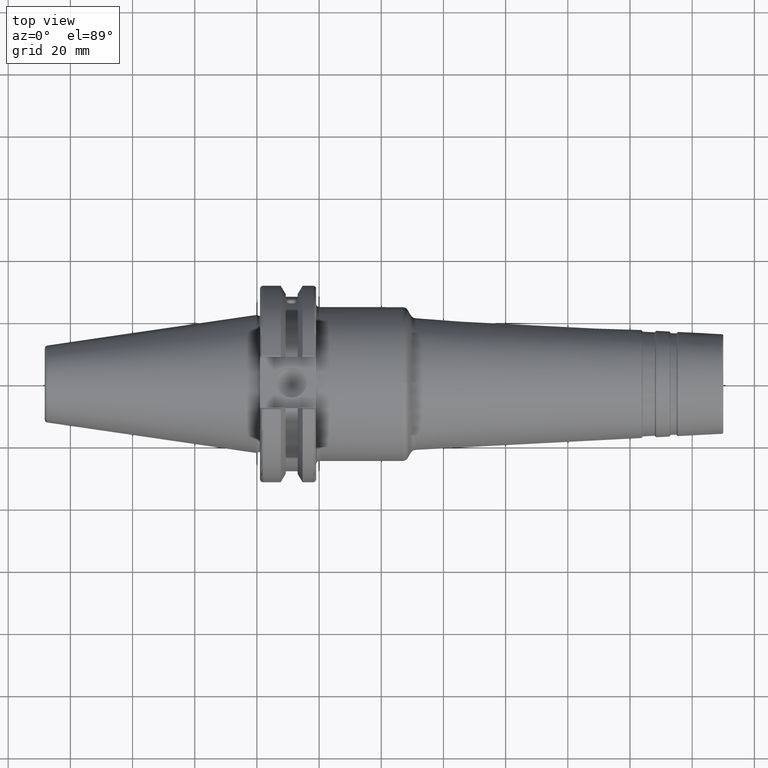
[diagram: clean part render]
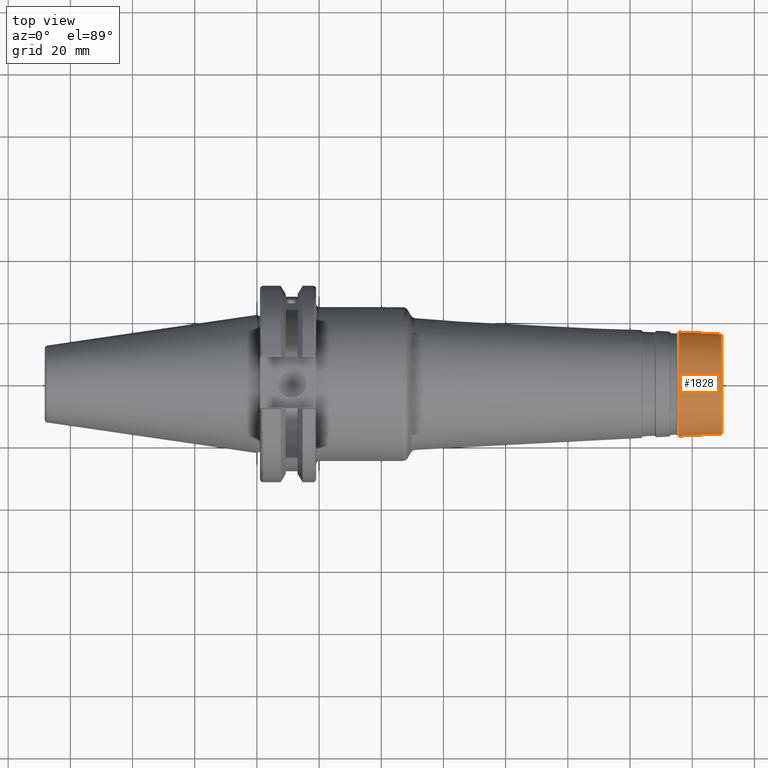
[diagram: same view with one face highlighted and labeled with its STEP entity id]
A machine part, top view. The second image highlights one B-rep face of the part: STEP entity #1828.
In plain terms, the highlighted conical surface has half-angle 3 deg.
Its self-contained STEP definition (entity closure, byte-faithful):
#173=LINE('',#2873,#266);
#266=VECTOR('',#2293,16.3848185972057);
#359=CONICAL_SURFACE('',#1988,16.3848185972057,0.0523598775598299);
#387=FACE_OUTER_BOUND('',#493,.T.);
#493=EDGE_LOOP('',(#1281,#1282,#1283,#1284,#1285,#1286));
#631=CIRCLE('',#1985,16.7575507230413);
#632=CIRCLE('',#1986,16.7575507230413);
#634=CIRCLE('',#1989,16.0248324840198);
#635=CIRCLE('',#1990,16.0248324840198);
#754=VERTEX_POINT('',#2864);
#755=VERTEX_POINT('',#2865);
#756=VERTEX_POINT('',#2870);
#757=VERTEX_POINT('',#2871);
#957=EDGE_CURVE('',#754,#755,#631,.T.);
#958=EDGE_CURVE('',#755,#754,#632,.T.);
#960=EDGE_CURVE('',#756,#757,#634,.T.);
#961=EDGE_CURVE('',#756,#755,#173,.T.);
#962=EDGE_CURVE('',#757,#756,#635,.T.);
#1281=ORIENTED_EDGE('',*,*,#960,.F.);
#1282=ORIENTED_EDGE('',*,*,#961,.T.);
#1283=ORIENTED_EDGE('',*,*,#957,.F.);
#1284=ORIENTED_EDGE('',*,*,#958,.F.);
#1285=ORIENTED_EDGE('',*,*,#961,.F.);
#1286=ORIENTED_EDGE('',*,*,#962,.F.);
#1828=ADVANCED_FACE('',(#387),#359,.T.);
#1985=AXIS2_PLACEMENT_3D('',#2866,#2283,#2284);
#1986=AXIS2_PLACEMENT_3D('',#2867,#2285,#2286);
#1988=AXIS2_PLACEMENT_3D('',#2869,#2289,#2290);
#1989=AXIS2_PLACEMENT_3D('',#2872,#2291,#2292);
#1990=AXIS2_PLACEMENT_3D('',#2874,#2294,#2295);
#2283=DIRECTION('center_axis',(-1.,0.,0.));
#2284=DIRECTION('ref_axis',(0.,-1.,3.06161699786838E-17));
#2285=DIRECTION('center_axis',(-1.,0.,0.));
#2286=DIRECTION('ref_axis',(0.,-1.,3.06161699786838E-17));
#2289=DIRECTION('center_axis',(-1.,0.,0.));
#2290=DIRECTION('ref_axis',(0.,1.,0.));
#2291=DIRECTION('center_axis',(1.,0.,0.));
#2292=DIRECTION('ref_axis',(0.,-1.,3.06161699786838E-17));
#2293=DIRECTION('',(-0.998629534754574,-0.0523359562429439,-6.40930612932372E-18));
#2294=DIRECTION('center_axis',(1.,0.,0.));
#2295=DIRECTION('ref_axis',(0.,-1.,3.06161699786838E-17));
#2864=CARTESIAN_POINT('',(135.545071105762,-2.05220808545219E-15,16.7575507230413));
#2865=CARTESIAN_POINT('',(135.545071105762,-16.7575507230413,-2.05220808545219E-15));
#2866=CARTESIAN_POINT('Origin',(135.545071105762,0.,-2.56526010681524E-15));
#2867=CARTESIAN_POINT('Origin',(135.545071105762,0.,-2.56526010681524E-15));
#2869=CARTESIAN_POINT('Origin',(142.657223746739,0.,0.));
#2870=CARTESIAN_POINT('',(149.526167978121,-16.0248324840198,-1.96247598084274E-15));
#2871=CARTESIAN_POINT('',(149.526167978121,-1.96247598084274E-15,16.0248324840198));
#2872=CARTESIAN_POINT('Origin',(149.526167978121,0.,-2.45309497605343E-15));
#2873=CARTESIAN_POINT('',(142.657223746739,-16.3848185972057,-2.0065615649678E-15));
#2874=CARTESIAN_POINT('Origin',(149.526167978121,0.,-2.45309497605343E-15));